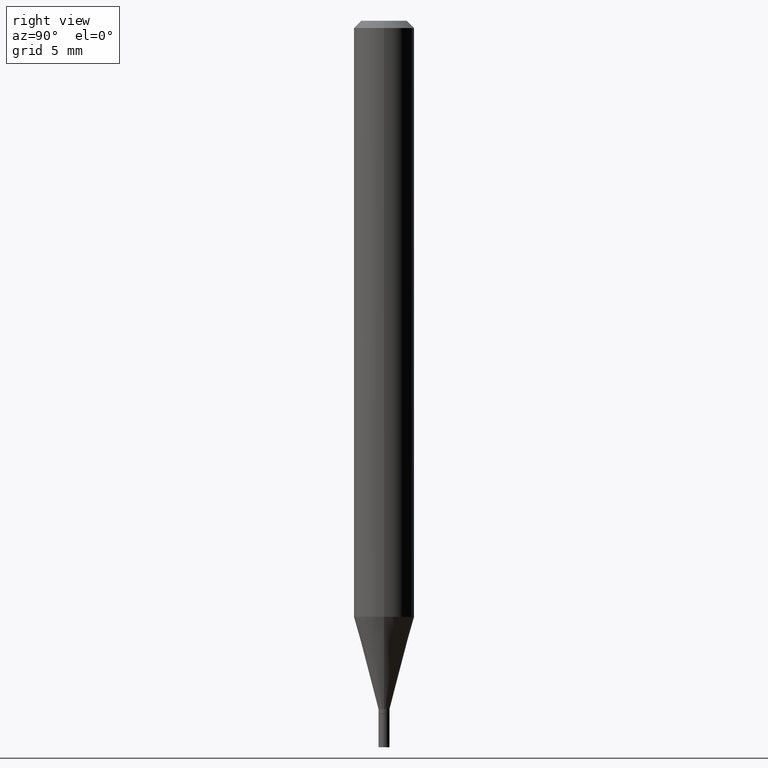
[diagram: clean part render]
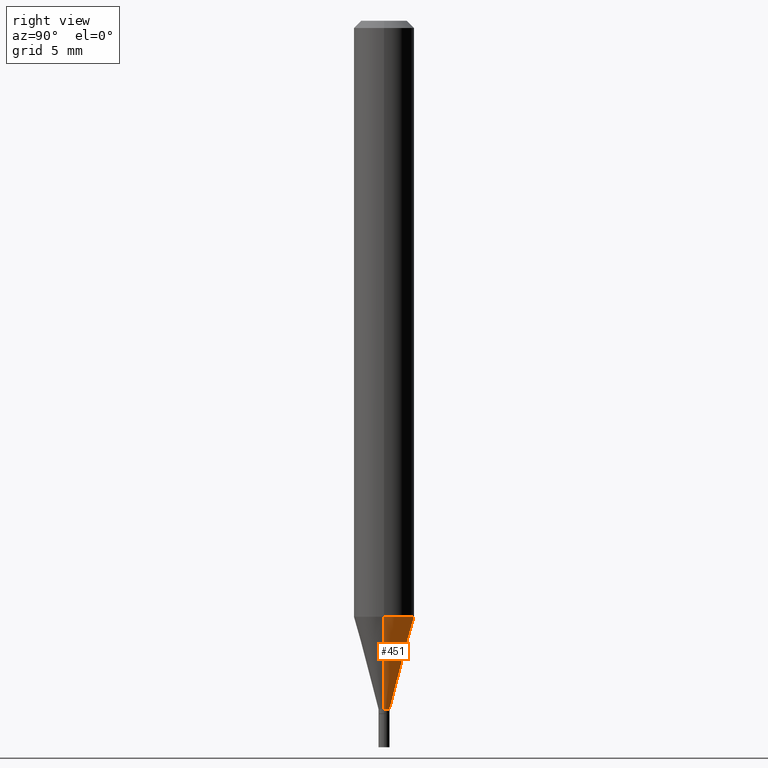
[diagram: same view with one face highlighted and labeled with its STEP entity id]
A machine part, right view. The second image highlights one B-rep face of the part: STEP entity #451.
In plain terms, the highlighted conical surface has half-angle 15 deg.
Its self-contained STEP definition (entity closure, byte-faithful):
#7 = LINE ( 'NONE', #217, #105 ) ;
#22 = AXIS2_PLACEMENT_3D ( 'NONE', #114, #143, #289 ) ;
#53 = DIRECTION ( 'NONE',  ( -2.445468806185136597E-29, 3.491481338843145583E-15, 1.000000000000000000 ) ) ;
#55 = ORIENTED_EDGE ( 'NONE', *, *, #92, .T. ) ;
#56 = CARTESIAN_POINT ( 'NONE',  ( 3.475011173589079817E-29, -4.961394982496111147E-15, -1.421000000000000263 ) ) ;
#68 = VECTOR ( 'NONE', #271, 39.37007874015748143 ) ;
#85 = VERTEX_POINT ( 'NONE', #255 ) ;
#92 = EDGE_CURVE ( 'NONE', #131, #169, #7, .T. ) ;
#96 = CIRCLE ( 'NONE', #193, 0.06250000000000000000 ) ;
#105 = VECTOR ( 'NONE', #318, 39.37007874015748143 ) ;
#114 = CARTESIAN_POINT ( 'NONE',  ( 3.475011173589079817E-29, -4.961394982496111147E-15, -1.421000000000000263 ) ) ;
#120 = ORIENTED_EDGE ( 'NONE', *, *, #440, .F. ) ;
#128 = EDGE_CURVE ( 'NONE', #417, #131, #130, .T. ) ;
#130 = CIRCLE ( 'NONE', #22, 0.01149999999999992001 ) ;
#131 = VERTEX_POINT ( 'NONE', #296 ) ;
#143 = DIRECTION ( 'NONE',  ( -2.445468806185136597E-29, 3.491481338843145583E-15, 1.000000000000000000 ) ) ;
#156 = LINE ( 'NONE', #199, #68 ) ;
#169 = VERTEX_POINT ( 'NONE', #446 ) ;
#193 = AXIS2_PLACEMENT_3D ( 'NONE', #334, #368, #295 ) ;
#199 = CARTESIAN_POINT ( 'NONE',  ( 0.01149999999999992001, -5.041699053289501888E-15, -1.421000000000000263 ) ) ;
#217 = CARTESIAN_POINT ( 'NONE',  ( -0.01149999999999992001, -4.879682567883699947E-15, -1.421000000000000263 ) ) ;
#230 = FACE_OUTER_BOUND ( 'NONE', #344, .T. ) ;
#255 = CARTESIAN_POINT ( 'NONE',  ( 0.06249999999999997918, -4.733280476589200707E-15, -1.230665408813987893 ) ) ;
#271 = DIRECTION ( 'NONE',  ( 0.2588190451025216277, 1.565188264969619995E-15, 0.9659258262890679791 ) ) ;
#289 = DIRECTION ( 'NONE',  ( 1.000000000000000000, -6.982962677686254878E-15, 0.000000000000000000 ) ) ;
#295 = DIRECTION ( 'NONE',  ( 1.000000000000000000, -6.982962677686262766E-15, 0.000000000000000000 ) ) ;
#296 = CARTESIAN_POINT ( 'NONE',  ( -0.01149999999999992001, -4.366219333633723973E-15, -1.421000000000000263 ) ) ;
#318 = DIRECTION ( 'NONE',  ( -0.2588190451025216277, 5.211531920934551831E-15, 0.9659258262890679791 ) ) ;
#321 = CONICAL_SURFACE ( 'NONE', #329, 0.01149999999999992001, 0.2617993877991502960 ) ;
#329 = AXIS2_PLACEMENT_3D ( 'NONE', #56, #53, #337 ) ;
#334 = CARTESIAN_POINT ( 'NONE',  ( 3.009553868105685827E-29, -4.296845309233809826E-15, -1.230665408813987893 ) ) ;
#337 = DIRECTION ( 'NONE',  ( 1.000000000000000000, -6.982962677686254878E-15, 0.000000000000000000 ) ) ;
#344 = EDGE_LOOP ( 'NONE', ( #387, #55, #424, #120 ) ) ;
#368 = DIRECTION ( 'NONE',  ( -2.445468806185136597E-29, 3.491481338843145583E-15, 1.000000000000000000 ) ) ;
#384 = EDGE_CURVE ( 'NONE', #85, #169, #96, .T. ) ;
#387 = ORIENTED_EDGE ( 'NONE', *, *, #128, .T. ) ;
#417 = VERTEX_POINT ( 'NONE', #445 ) ;
#424 = ORIENTED_EDGE ( 'NONE', *, *, #384, .F. ) ;
#440 = EDGE_CURVE ( 'NONE', #417, #85, #156, .T. ) ;
#445 = CARTESIAN_POINT ( 'NONE',  ( 0.01149999999999992001, -5.041699053289501888E-15, -1.421000000000000263 ) ) ;
#446 = CARTESIAN_POINT ( 'NONE',  ( -0.06249999999999997918, -3.852756099383747210E-15, -1.230665408813987893 ) ) ;
#451 = ADVANCED_FACE ( 'NONE', ( #230 ), #321, .T. ) ;